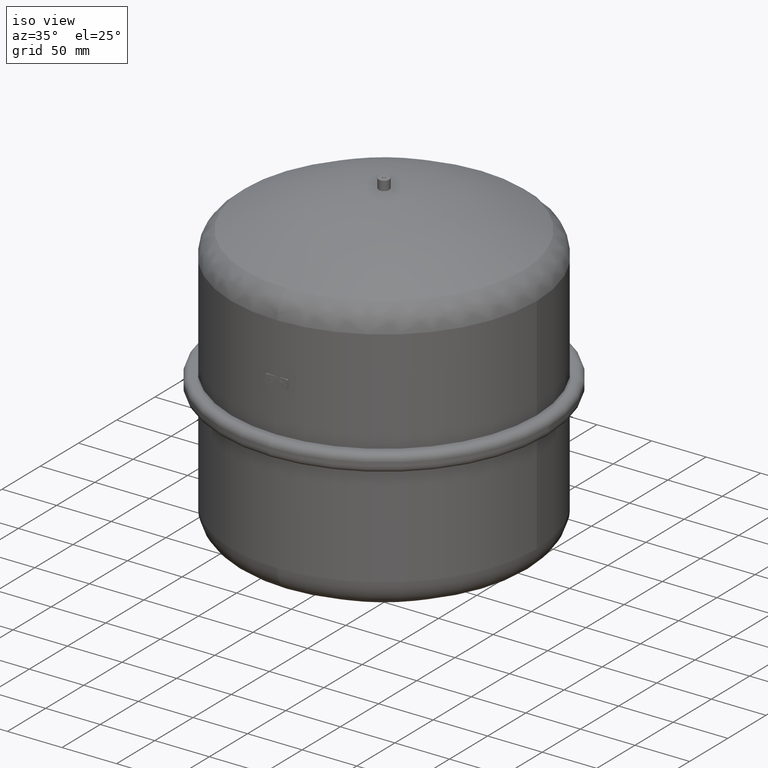
[diagram: clean part render]
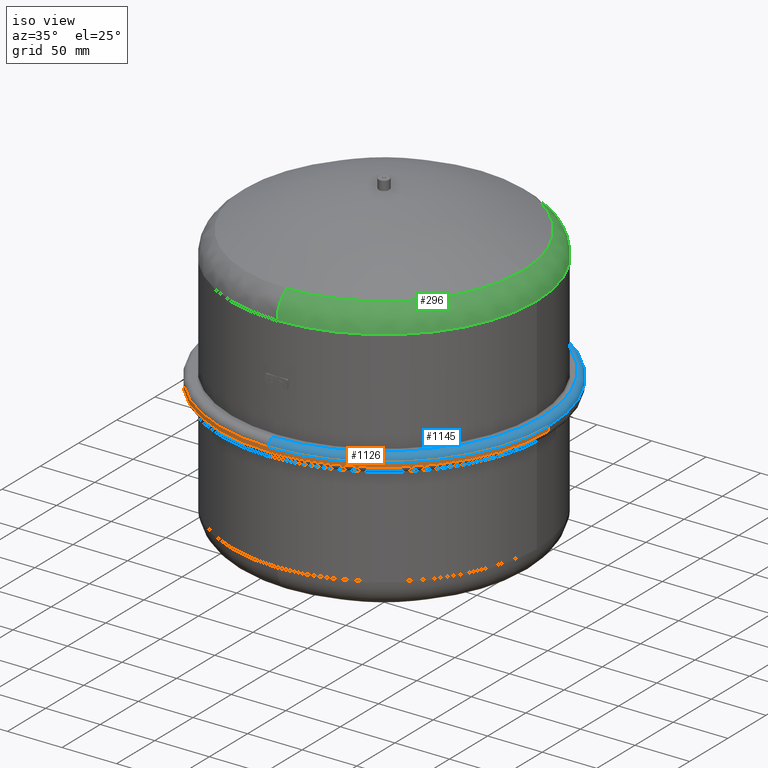
[diagram: same view with three faces highlighted in distinct colors, each labeled with its STEP entity id]
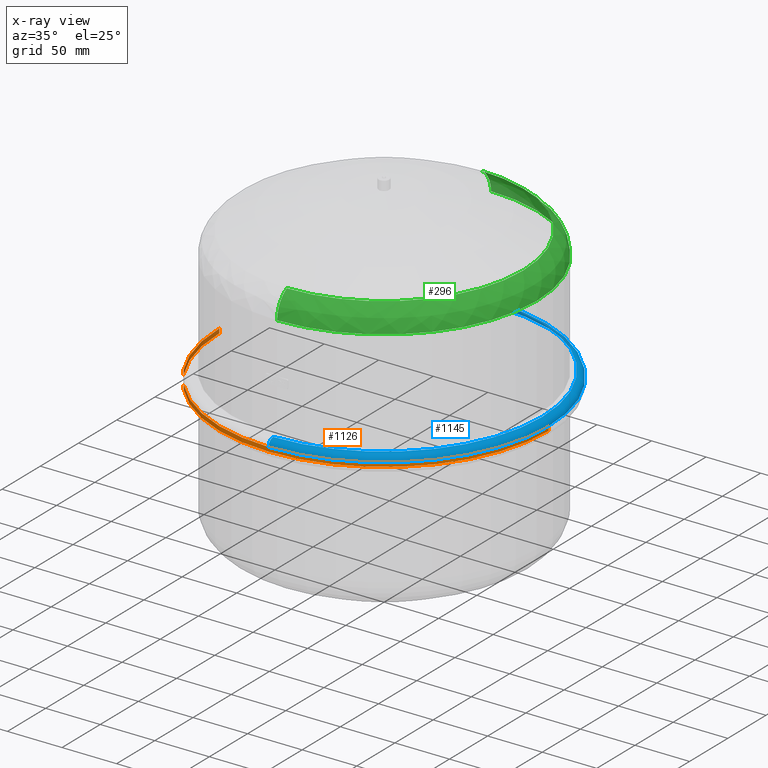
[diagram: x-ray of the same camera — body ghosted, the three highlighted faces saturated]
A machine part, iso view with three faces highlighted in distinct colors.
The next image is the same camera in x-ray (body ghosted, the three faces saturated) — at least one of them is partly hidden behind the body in this view.
Their STEP definitions:

[orange] entity #1126 — the highlighted cylindrical surface (partial cylindrical patch) has radius 151 mm, axis along (-0, 0, 1).
#844=CARTESIAN_POINT('',(-2.465190E-031,-151.0,178.0));
#845=VERTEX_POINT('',#844);
#880=CARTESIAN_POINT('',(-151.0,4.440892E-016,178.0));
#881=VERTEX_POINT('',#880);
#889=CARTESIAN_POINT('',(-1.540744E-031,4.440892E-016,178.0));
#890=DIRECTION('',(0.0,0.0,1.0));
#891=DIRECTION('',(-1.0,0.0,0.0));
#892=AXIS2_PLACEMENT_3D('',#889,#890,#891);
#893=CIRCLE('',#892,151.0);
#894=EDGE_CURVE('',#881,#845,#893,.T.);
#904=CARTESIAN_POINT('',(-151.0,4.440892E-016,174.0));
#905=VERTEX_POINT('',#904);
#906=CARTESIAN_POINT('',(-151.0,5.665498E-016,178.0));
#907=DIRECTION('',(0.0,0.0,-1.0));
#908=VECTOR('',#907,4.0);
#909=LINE('',#906,#908);
#910=EDGE_CURVE('',#881,#905,#909,.T.);
#913=CARTESIAN_POINT('',(151.0,1.905811E-014,178.0));
#914=VERTEX_POINT('',#913);
#922=CARTESIAN_POINT('',(151.0,1.881318E-014,174.0));
#923=VERTEX_POINT('',#922);
#924=CARTESIAN_POINT('',(151.0,1.905811E-014,178.0));
#925=DIRECTION('',(0.0,0.0,-1.0));
#926=VECTOR('',#925,4.0);
#927=LINE('',#924,#926);
#928=EDGE_CURVE('',#914,#923,#927,.T.);
#954=CARTESIAN_POINT('',(-2.465190E-031,-151.0,174.0));
#955=VERTEX_POINT('',#954);
#965=CARTESIAN_POINT('',(-9.244464E-032,4.440892E-016,174.0));
#966=DIRECTION('',(0.0,0.0,1.0));
#967=DIRECTION('',(-1.0,0.0,0.0));
#968=AXIS2_PLACEMENT_3D('',#965,#966,#967);
#969=CIRCLE('',#968,151.0);
#970=EDGE_CURVE('',#905,#955,#969,.T.);
#1097=CARTESIAN_POINT('',(-9.244464E-032,4.440892E-016,174.0));
#1098=DIRECTION('',(0.0,0.0,1.0));
#1099=DIRECTION('',(-1.0,0.0,0.0));
#1100=AXIS2_PLACEMENT_3D('',#1097,#1098,#1099);
#1101=CIRCLE('',#1100,151.0);
#1102=EDGE_CURVE('',#955,#923,#1101,.T.);
#1107=CARTESIAN_POINT('',(-1.232595E-031,4.440892E-016,176.0));
#1108=DIRECTION('',(-1.540744E-032,6.123032E-017,1.0));
#1109=DIRECTION('',(-1.0,0.0,0.0));
#1110=AXIS2_PLACEMENT_3D('',#1107,#1108,#1109);
#1111=CYLINDRICAL_SURFACE('',#1110,151.0);
#1112=ORIENTED_EDGE('',*,*,#910,.T.);
#1113=ORIENTED_EDGE('',*,*,#970,.T.);
#1114=ORIENTED_EDGE('',*,*,#1102,.T.);
#1115=ORIENTED_EDGE('',*,*,#928,.F.);
#1116=CARTESIAN_POINT('',(-1.540744E-031,4.440892E-016,178.0));
#1117=DIRECTION('',(0.0,0.0,1.0));
#1118=DIRECTION('',(-1.0,0.0,0.0));
#1119=AXIS2_PLACEMENT_3D('',#1116,#1117,#1118);
#1120=CIRCLE('',#1119,151.0);
#1121=EDGE_CURVE('',#845,#914,#1120,.T.);
#1122=ORIENTED_EDGE('',*,*,#1121,.F.);
#1123=ORIENTED_EDGE('',*,*,#894,.F.);
#1124=EDGE_LOOP('',(#1112,#1113,#1114,#1115,#1122,#1123));
#1125=FACE_OUTER_BOUND('',#1124,.T.);
#1126=ADVANCED_FACE('',(#1125),#1111,.T.);

[blue] entity #1145 — the highlighted toroidal blend (fillet) surface has major radius 145 mm and minor (blend) radius 6 mm.
#842=CARTESIAN_POINT('',(-3.389637E-031,-145.00000000000003,184.0));
#843=VERTEX_POINT('',#842);
#844=CARTESIAN_POINT('',(-2.465190E-031,-151.0,178.0));
#845=VERTEX_POINT('',#844);
#846=CARTESIAN_POINT('',(-2.465190E-031,-145.0,178.0));
#847=DIRECTION('',(1.0,0.0,0.0));
#848=DIRECTION('',(0.0,-1.0,0.0));
#849=AXIS2_PLACEMENT_3D('',#846,#847,#848);
#850=CIRCLE('',#849,6.000000000000001);
#851=EDGE_CURVE('',#843,#845,#850,.T.);
#862=CARTESIAN_POINT('',(-1.775679E-014,145.00000000000003,184.0));
#863=VERTEX_POINT('',#862);
#871=CARTESIAN_POINT('',(-1.849156E-014,151.0,178.0));
#872=VERTEX_POINT('',#871);
#873=CARTESIAN_POINT('',(-1.775679E-014,145.0,178.0));
#874=DIRECTION('',(-1.0,0.0,0.0));
#875=DIRECTION('',(0.0,1.0,0.0));
#876=AXIS2_PLACEMENT_3D('',#873,#874,#875);
#877=CIRCLE('',#876,6.000000000000001);
#878=EDGE_CURVE('',#863,#872,#877,.T.);
#913=CARTESIAN_POINT('',(151.0,1.905811E-014,178.0));
#914=VERTEX_POINT('',#913);
#915=CARTESIAN_POINT('',(-1.540744E-031,4.440892E-016,178.0));
#916=DIRECTION('',(0.0,0.0,1.0));
#917=DIRECTION('',(-1.0,0.0,0.0));
#918=AXIS2_PLACEMENT_3D('',#915,#916,#917);
#919=CIRCLE('',#918,151.0);
#920=EDGE_CURVE('',#914,#872,#919,.T.);
#1116=CARTESIAN_POINT('',(-1.540744E-031,4.440892E-016,178.0));
#1117=DIRECTION('',(0.0,0.0,1.0));
#1118=DIRECTION('',(-1.0,0.0,0.0));
#1119=AXIS2_PLACEMENT_3D('',#1116,#1117,#1118);
#1120=CIRCLE('',#1119,151.0);
#1121=EDGE_CURVE('',#845,#914,#1120,.T.);
#1127=CARTESIAN_POINT('',(-2.465190E-031,4.440892E-016,178.0));
#1128=DIRECTION('',(-1.540744E-032,6.123032E-017,1.0));
#1129=DIRECTION('',(0.0,-1.0,0.0));
#1130=AXIS2_PLACEMENT_3D('',#1127,#1128,#1129);
#1131=TOROIDAL_SURFACE('',#1130,145.0,6.000000000000001);
#1132=ORIENTED_EDGE('',*,*,#851,.T.);
#1133=ORIENTED_EDGE('',*,*,#1121,.T.);
#1134=ORIENTED_EDGE('',*,*,#920,.T.);
#1135=ORIENTED_EDGE('',*,*,#878,.F.);
#1136=CARTESIAN_POINT('',(-2.465190E-031,8.881784E-016,184.0));
#1137=DIRECTION('',(0.0,0.0,1.0));
#1138=DIRECTION('',(-1.0,0.0,0.0));
#1139=AXIS2_PLACEMENT_3D('',#1136,#1137,#1138);
#1140=CIRCLE('',#1139,145.00000000000003);
#1141=EDGE_CURVE('',#843,#863,#1140,.T.);
#1142=ORIENTED_EDGE('',*,*,#1141,.F.);
#1143=EDGE_LOOP('',(#1132,#1133,#1134,#1135,#1142));
#1144=FACE_OUTER_BOUND('',#1143,.T.);
#1145=ADVANCED_FACE('',(#1144),#1131,.T.);

[green] entity #296 — the highlighted face is a freeform B-spline surface patch.
#170=CARTESIAN_POINT('',(140.0,1.726252E-014,278.64254242384544));
#171=VERTEX_POINT('',#170);
#178=CARTESIAN_POINT('',(7.385169E-015,-140.0,278.64254242384544));
#179=VERTEX_POINT('',#178);
#180=CARTESIAN_POINT('',(-1.190815E-016,1.180331E-016,278.64254242384544));
#181=DIRECTION('',(0.0,0.0,1.0));
#182=DIRECTION('',(-1.0,0.0,0.0));
#183=AXIS2_PLACEMENT_3D('',#180,#181,#182);
#184=CIRCLE('',#183,140.0);
#185=EDGE_CURVE('',#179,#171,#184,.T.);
#197=CARTESIAN_POINT('',(-3.636288E-015,90.000000000000028,278.64254242384538));
#198=CARTESIAN_POINT('',(-8.269503E-015,89.999999999999972,303.64254242384544));
#199=CARTESIAN_POINT('',(-1.133102E-014,115.00000000000001,303.64254242384544));
#200=CARTESIAN_POINT('',(-1.439253E-014,140.00000000000006,303.64254242384544));
#201=CARTESIAN_POINT('',(-9.759320E-015,140.0,278.64254242384538));
#202=CARTESIAN_POINT('',(-90.000000000000014,90.0,278.64254242384538));
#203=CARTESIAN_POINT('',(-89.999999999999972,89.999999999999957,303.64254242384544));
#204=CARTESIAN_POINT('',(-115.0,114.99999999999997,303.64254242384544));
#205=CARTESIAN_POINT('',(-140.00000000000006,140.00000000000003,303.64254242384544));
#206=CARTESIAN_POINT('',(-140.0,139.99999999999994,278.64254242384538));
#207=CARTESIAN_POINT('',(-90.000000000000014,-1.090342E-014,278.64254242384538));
#208=CARTESIAN_POINT('',(-89.999999999999972,-6.310999E-015,303.64254242384544));
#209=CARTESIAN_POINT('',(-115.00000000000001,-9.372514E-015,303.64254242384544));
#210=CARTESIAN_POINT('',(-140.00000000000006,-1.243403E-014,303.64254242384544));
#211=CARTESIAN_POINT('',(-140.0,-1.702646E-014,278.64254242384538));
#212=CARTESIAN_POINT('',(-89.999999999999986,-90.000000000000028,278.64254242384538));
#213=CARTESIAN_POINT('',(-89.999999999999943,-89.999999999999957,303.64254242384544));
#214=CARTESIAN_POINT('',(-114.99999999999997,-115.0,303.64254242384544));
#215=CARTESIAN_POINT('',(-140.0,-140.00000000000003,303.64254242384544));
#216=CARTESIAN_POINT('',(-139.99999999999994,-140.0,278.64254242384538));
#217=CARTESIAN_POINT('',(1.840663E-014,-90.000000000000028,278.64254242384538));
#218=CARTESIAN_POINT('',(1.377341E-014,-89.999999999999972,303.64254242384544));
#219=CARTESIAN_POINT('',(1.683493E-014,-115.00000000000001,303.64254242384544));
#220=CARTESIAN_POINT('',(1.989644E-014,-140.00000000000006,303.64254242384544));
#221=CARTESIAN_POINT('',(2.452966E-014,-140.0,278.64254242384538));
#222=CARTESIAN_POINT('',(90.000000000000043,-90.0,278.64254242384538));
#223=CARTESIAN_POINT('',(89.999999999999972,-89.999999999999943,303.64254242384544));
#224=CARTESIAN_POINT('',(115.0,-114.99999999999997,303.64254242384544));
#225=CARTESIAN_POINT('',(140.00000000000006,-140.0,303.64254242384544));
#226=CARTESIAN_POINT('',(140.0,-139.99999999999994,278.64254242384538));
#227=CARTESIAN_POINT('',(90.000000000000043,1.113949E-014,278.64254242384538));
#228=CARTESIAN_POINT('',(89.999999999999972,1.573192E-014,303.64254242384544));
#229=CARTESIAN_POINT('',(115.00000000000001,1.879343E-014,303.64254242384544));
#230=CARTESIAN_POINT('',(140.00000000000006,2.185495E-014,303.64254242384544));
#231=CARTESIAN_POINT('',(140.0,1.726252E-014,278.64254242384538));
#232=CARTESIAN_POINT('',(90.000000000000014,90.000000000000028,278.64254242384538));
#233=CARTESIAN_POINT('',(89.999999999999943,89.999999999999972,303.64254242384544));
#234=CARTESIAN_POINT('',(114.99999999999997,115.0,303.64254242384544));
#235=CARTESIAN_POINT('',(140.0,140.00000000000006,303.64254242384544));
#236=CARTESIAN_POINT('',(139.99999999999994,140.0,278.64254242384538));
#237=CARTESIAN_POINT('',(-3.636288E-015,90.000000000000028,278.64254242384538));
#238=CARTESIAN_POINT('',(-8.269503E-015,89.999999999999972,303.64254242384544));
#239=CARTESIAN_POINT('',(-1.133102E-014,115.00000000000001,303.64254242384544));
#240=CARTESIAN_POINT('',(-1.439253E-014,140.00000000000006,303.64254242384544));
#241=CARTESIAN_POINT('',(-9.759320E-015,140.0,278.64254242384538));
#249=(BOUNDED_SURFACE()B_SPLINE_SURFACE(2,2,((#197,#202,#207,#212,#217,#222,#227,#232,#237),(#198,#203,#208,#213,#218,#223,#228,#233,#238),(#199,#204,#209,#214,#219,#224,#229,#234,#239),(#200,#205,#210,#215,#220,#225,#230,#235,#240),(#201,#206,#211,#216,#221,#226,#231,#236,#241)),.UNSPECIFIED.,.F.,.T.,.U.)B_SPLINE_SURFACE_WITH_KNOTS((3,2,3),(3,2,2,2,3),(-3.141592653589795,-1.570796326794897,2.066543E-015),(0.0,1.570796326794897,3.141592653589793,4.71238898038469,6.283185307179586),.UNSPECIFIED.)GEOMETRIC_REPRESENTATION_ITEM()RATIONAL_B_SPLINE_SURFACE(((1.0,0.707106781186548,1.0,0.707106781186548,1.0,0.707106781186548,1.0,0.707106781186548,1.0),(0.707106781186545,0.499999999999998,0.707106781186545,0.499999999999998,0.707106781186545,0.499999999999998,0.707106781186545,0.499999999999998,0.707106781186545),(1.0,0.707106781186548,1.0,0.707106781186548,1.0,0.707106781186548,1.0,0.707106781186548,1.0),(0.707106781186546,0.499999999999999,0.707106781186546,0.499999999999999,0.707106781186546,0.499999999999999,0.707106781186546,0.499999999999999,0.707106781186546),(1.0,0.707106781186548,1.0,0.707106781186548,1.0,0.707106781186548,1.0,0.707106781186548,1.0)))REPRESENTATION_ITEM('')SURFACE());
#250=CARTESIAN_POINT('',(3.355614E-015,-127.33905579399143,300.38530448648982));
#251=VERTEX_POINT('',#250);
#252=CARTESIAN_POINT('',(7.385169E-015,-115.00000000000001,278.64254242384544));
#253=DIRECTION('',(-1.0,0.0,0.0));
#254=DIRECTION('',(0.0,-1.0,0.0));
#255=AXIS2_PLACEMENT_3D('',#252,#253,#254);
#256=CIRCLE('',#255,25.0);
#257=EDGE_CURVE('',#179,#251,#256,.T.);
#258=ORIENTED_EDGE('',*,*,#257,.F.);
#259=ORIENTED_EDGE('',*,*,#185,.T.);
#260=CARTESIAN_POINT('',(-9.759320E-015,140.0,278.64254242384544));
#261=VERTEX_POINT('',#260);
#262=CARTESIAN_POINT('',(-1.190815E-016,1.180331E-016,278.64254242384544));
#263=DIRECTION('',(0.0,0.0,1.0));
#264=DIRECTION('',(-1.0,0.0,0.0));
#265=AXIS2_PLACEMENT_3D('',#262,#263,#264);
#266=CIRCLE('',#265,140.0);
#267=EDGE_CURVE('',#171,#261,#266,.T.);
#268=ORIENTED_EDGE('',*,*,#267,.T.);
#269=CARTESIAN_POINT('',(-1.223841E-014,127.33905579399143,300.38530448648982));
#270=VERTEX_POINT('',#269);
#271=CARTESIAN_POINT('',(-6.697804E-015,115.00000000000001,278.64254242384544));
#272=DIRECTION('',(1.0,0.0,0.0));
#273=DIRECTION('',(0.0,1.0,0.0));
#274=AXIS2_PLACEMENT_3D('',#271,#272,#273);
#275=CIRCLE('',#274,25.0);
#276=EDGE_CURVE('',#261,#270,#275,.T.);
#277=ORIENTED_EDGE('',*,*,#276,.T.);
#278=CARTESIAN_POINT('',(127.33905579399143,-3.710680E-014,300.38530448648982));
#279=VERTEX_POINT('',#278);
#280=CARTESIAN_POINT('',(-4.148636E-015,4.112114E-015,300.38530448648982));
#281=DIRECTION('',(0.0,0.0,1.0));
#282=DIRECTION('',(-1.0,0.0,0.0));
#283=AXIS2_PLACEMENT_3D('',#280,#281,#282);
#284=CIRCLE('',#283,127.33905579399143);
#285=EDGE_CURVE('',#279,#270,#284,.T.);
#286=ORIENTED_EDGE('',*,*,#285,.F.);
#287=CARTESIAN_POINT('',(-4.148636E-015,4.112114E-015,300.38530448648982));
#288=DIRECTION('',(0.0,0.0,1.0));
#289=DIRECTION('',(-1.0,0.0,0.0));
#290=AXIS2_PLACEMENT_3D('',#287,#288,#289);
#291=CIRCLE('',#290,127.33905579399143);
#292=EDGE_CURVE('',#251,#279,#291,.T.);
#293=ORIENTED_EDGE('',*,*,#292,.F.);
#294=EDGE_LOOP('',(#258,#259,#268,#277,#286,#293));
#295=FACE_OUTER_BOUND('',#294,.T.);
#296=ADVANCED_FACE('',(#295),#249,.T.);